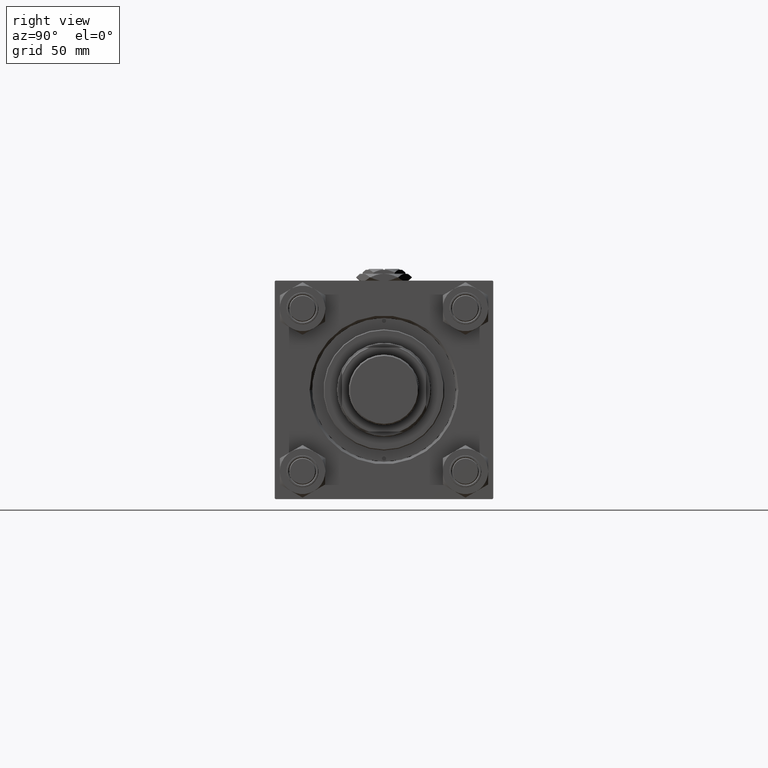
[diagram: clean part render]
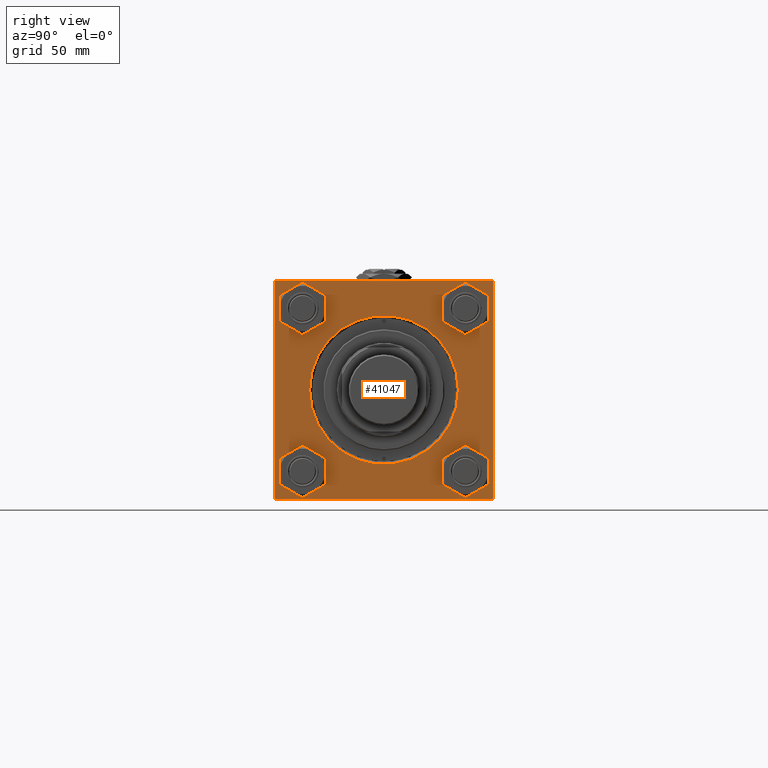
[diagram: same view with one face highlighted and labeled with its STEP entity id]
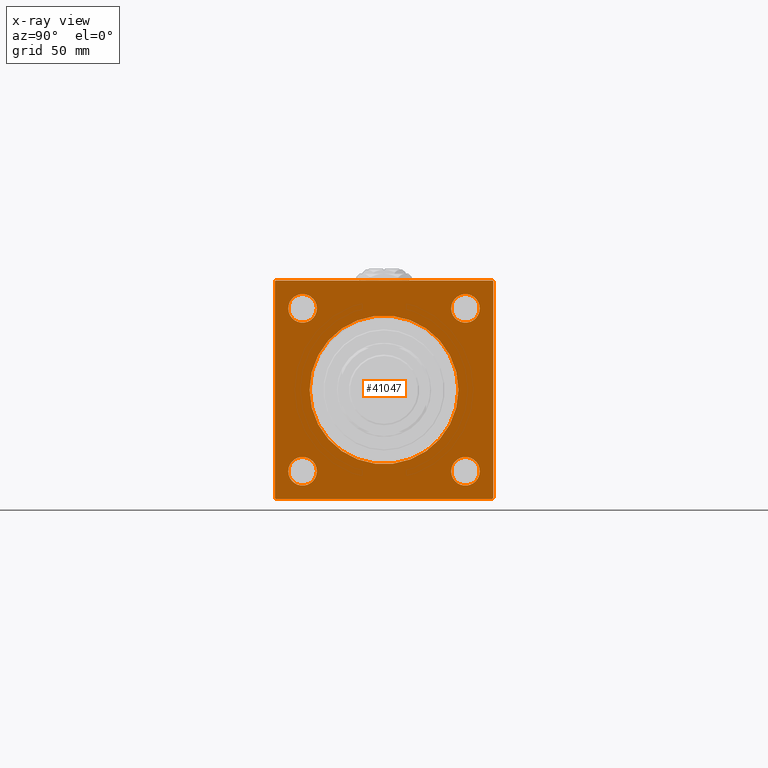
[diagram: x-ray of the same camera — body ghosted, the highlighted face saturated]
A machine part, right view. The second image highlights one B-rep face of the part: STEP entity #41047.
The next image is the same camera in x-ray: the body ghosted, the highlighted face saturated — about 0% of this face is hidden behind the body in this view.
In plain terms, the highlighted planar face has unit normal (-1, 0, 0).
Its self-contained STEP definition (entity closure, byte-faithful):
#288 = VECTOR ( 'NONE', #6985, 1000.000000000000000 ) ;
#870 = PLANE ( 'NONE',  #50421 ) ;
#971 = VECTOR ( 'NONE', #39085, 1000.000000000000000 ) ;
#1698 = DIRECTION ( 'NONE',  ( -1.000000000000000000, 0.000000000000000000, -0.000000000000000000 ) ) ;
#1717 = CARTESIAN_POINT ( 'NONE',  ( 188.0000000000000000, 48.45000000000000995, -48.45000000000001705 ) ) ;
#2848 = VERTEX_POINT ( 'NONE', #36010 ) ;
#3179 = VERTEX_POINT ( 'NONE', #35949 ) ;
#3214 = DIRECTION ( 'NONE',  ( 0.000000000000000000, 0.7071067811865279218, -0.7071067811865672237 ) ) ;
#3444 = VERTEX_POINT ( 'NONE', #28011 ) ;
#3786 = VERTEX_POINT ( 'NONE', #45689 ) ;
#4048 = DIRECTION ( 'NONE',  ( -0.000000000000000000, 0.7071067811865671127, 0.7071067811865279218 ) ) ;
#4156 = VERTEX_POINT ( 'NONE', #45083 ) ;
#4187 = CARTESIAN_POINT ( 'NONE',  ( 188.0000000000000000, 48.45000000000000995, 48.45000000000001705 ) ) ;
#4533 = VECTOR ( 'NONE', #3214, 1000.000000000000000 ) ;
#4697 = CIRCLE ( 'NONE', #38223, 8.499999999999923617 ) ;
#4843 = CARTESIAN_POINT ( 'NONE',  ( 188.0000000000000000, 65.00000000000002842, -64.50000000000001421 ) ) ;
#4860 = DIRECTION ( 'NONE',  ( 0.000000000000000000, 0.000000000000000000, 1.000000000000000000 ) ) ;
#6004 = CIRCLE ( 'NONE', #7742, 44.24999999999998579 ) ;
#6007 = EDGE_LOOP ( 'NONE', ( #17834, #17140, #47166, #43096, #7601, #17302, #52179, #29625 ) ) ;
#6625 = ORIENTED_EDGE ( 'NONE', *, *, #11578, .T. ) ;
#6974 = CARTESIAN_POINT ( 'NONE',  ( 188.0000000000000000, -48.45000000000001705, -48.45000000000001705 ) ) ;
#6985 = DIRECTION ( 'NONE',  ( 0.000000000000000000, 0.000000000000000000, -1.000000000000000000 ) ) ;
#7048 = CARTESIAN_POINT ( 'NONE',  ( 188.0000000000000000, -48.44999999999998153, 48.44999999999998863 ) ) ;
#7191 = LINE ( 'NONE', #23334, #46249 ) ;
#7240 = DIRECTION ( 'NONE',  ( -1.000000000000000000, 0.000000000000000000, -0.000000000000000000 ) ) ;
#7601 = ORIENTED_EDGE ( 'NONE', *, *, #13298, .F. ) ;
#7742 = AXIS2_PLACEMENT_3D ( 'NONE', #45964, #9111, #41926 ) ;
#7859 = VERTEX_POINT ( 'NONE', #31000 ) ;
#7871 = EDGE_CURVE ( 'NONE', #7859, #33468, #32573, .T. ) ;
#8725 = CARTESIAN_POINT ( 'NONE',  ( 188.0000000000000000, -64.50000000000002842, -65.00000000000001421 ) ) ;
#9111 = DIRECTION ( 'NONE',  ( -1.000000000000000000, 0.000000000000000000, -0.000000000000000000 ) ) ;
#9768 = EDGE_CURVE ( 'NONE', #34867, #36783, #6004, .T. ) ;
#10334 = VERTEX_POINT ( 'NONE', #8725 ) ;
#10449 = EDGE_CURVE ( 'NONE', #40619, #11512, #31820, .T. ) ;
#11501 = CIRCLE ( 'NONE', #42460, 8.499999999999923617 ) ;
#11512 = VERTEX_POINT ( 'NONE', #26478 ) ;
#11547 = ORIENTED_EDGE ( 'NONE', *, *, #34346, .T. ) ;
#11578 = EDGE_CURVE ( 'NONE', #2848, #27342, #48215, .T. ) ;
#12344 = VECTOR ( 'NONE', #4048, 1000.000000000000000 ) ;
#13298 = EDGE_CURVE ( 'NONE', #25006, #3786, #39881, .T. ) ;
#13474 = DIRECTION ( 'NONE',  ( -1.000000000000000000, 0.000000000000000000, -0.000000000000000000 ) ) ;
#14151 = LINE ( 'NONE', #25713, #25899 ) ;
#14317 = DIRECTION ( 'NONE',  ( -1.000000000000000000, 0.000000000000000000, -0.000000000000000000 ) ) ;
#14498 = CARTESIAN_POINT ( 'NONE',  ( 188.0000000000000000, 48.45000000000000995, -39.95000000000008811 ) ) ;
#14693 = CARTESIAN_POINT ( 'NONE',  ( 188.0000000000000000, -48.45000000000001705, -56.94999999999993889 ) ) ;
#15328 = LINE ( 'NONE', #34706, #288 ) ;
#16156 = EDGE_CURVE ( 'NONE', #3444, #52377, #14151, .T. ) ;
#17140 = ORIENTED_EDGE ( 'NONE', *, *, #20251, .T. ) ;
#17302 = ORIENTED_EDGE ( 'NONE', *, *, #44865, .T. ) ;
#17822 = VECTOR ( 'NONE', #40728, 1000.000000000000000 ) ;
#17834 = ORIENTED_EDGE ( 'NONE', *, *, #20256, .T. ) ;
#18124 = DIRECTION ( 'NONE',  ( -1.000000000000000000, 0.000000000000000000, -0.000000000000000000 ) ) ;
#18361 = CARTESIAN_POINT ( 'NONE',  ( 188.0000000000000000, 65.00000000000002842, 65.00000000000001421 ) ) ;
#18821 = EDGE_LOOP ( 'NONE', ( #53119, #45161 ) ) ;
#19096 = VECTOR ( 'NONE', #27521, 1000.000000000000000 ) ;
#19139 = EDGE_LOOP ( 'NONE', ( #37675, #27423 ) ) ;
#19782 = EDGE_LOOP ( 'NONE', ( #23078, #50325 ) ) ;
#19972 = DIRECTION ( 'NONE',  ( 0.000000000000000000, 0.000000000000000000, 1.000000000000000000 ) ) ;
#20089 = CIRCLE ( 'NONE', #39850, 8.499999999999923617 ) ;
#20182 = EDGE_CURVE ( 'NONE', #36783, #34867, #37215, .T. ) ;
#20251 = EDGE_CURVE ( 'NONE', #23079, #10334, #43315, .T. ) ;
#20256 = EDGE_CURVE ( 'NONE', #52377, #23079, #15328, .T. ) ;
#21312 = FACE_BOUND ( 'NONE', #19782, .T. ) ;
#22316 = AXIS2_PLACEMENT_3D ( 'NONE', #48498, #48751, #19972 ) ;
#22691 = DIRECTION ( 'NONE',  ( 0.000000000000000000, 0.000000000000000000, 1.000000000000000000 ) ) ;
#23078 = ORIENTED_EDGE ( 'NONE', *, *, #9768, .T. ) ;
#23079 = VERTEX_POINT ( 'NONE', #27607 ) ;
#23334 = CARTESIAN_POINT ( 'NONE',  ( 188.0000000000000000, 65.00000000000002842, -64.99999999999998579 ) ) ;
#23455 = CARTESIAN_POINT ( 'NONE',  ( 188.0000000000000000, -48.44999999999998153, 48.44999999999998863 ) ) ;
#24096 = DIRECTION ( 'NONE',  ( -1.000000000000000000, 0.000000000000000000, -0.000000000000000000 ) ) ;
#25006 = VERTEX_POINT ( 'NONE', #48715 ) ;
#25684 = DIRECTION ( 'NONE',  ( 0.000000000000000000, 0.000000000000000000, 1.000000000000000000 ) ) ;
#25713 = CARTESIAN_POINT ( 'NONE',  ( 188.0000000000000000, -64.99999999999998579, 64.50000000000008527 ) ) ;
#25889 = FACE_BOUND ( 'NONE', #19139, .T. ) ;
#25899 = VECTOR ( 'NONE', #50450, 999.9999999999998863 ) ;
#26115 = CARTESIAN_POINT ( 'NONE',  ( 188.0000000000000000, 0.000000000000000000, 0.000000000000000000 ) ) ;
#26189 = DIRECTION ( 'NONE',  ( 0.000000000000000000, 0.000000000000000000, 1.000000000000000000 ) ) ;
#26478 = CARTESIAN_POINT ( 'NONE',  ( 188.0000000000000000, 48.45000000000000995, 56.94999999999993889 ) ) ;
#26683 = DIRECTION ( 'NONE',  ( -0.000000000000000000, 0.000000000000000000, 1.000000000000000000 ) ) ;
#26788 = EDGE_LOOP ( 'NONE', ( #35453, #11547 ) ) ;
#26974 = ORIENTED_EDGE ( 'NONE', *, *, #51354, .T. ) ;
#27342 = VERTEX_POINT ( 'NONE', #14498 ) ;
#27423 = ORIENTED_EDGE ( 'NONE', *, *, #35806, .T. ) ;
#27521 = DIRECTION ( 'NONE',  ( 0.000000000000000000, -1.000000000000000000, -1.067522139062650425E-16 ) ) ;
#27607 = CARTESIAN_POINT ( 'NONE',  ( 188.0000000000000000, -64.99999999999998579, -64.50000000000002842 ) ) ;
#27741 = AXIS2_PLACEMENT_3D ( 'NONE', #26115, #13474, #4860 ) ;
#27793 = CARTESIAN_POINT ( 'NONE',  ( 188.0000000000000000, 64.50000000000002842, -64.99999999999998579 ) ) ;
#28011 = CARTESIAN_POINT ( 'NONE',  ( 188.0000000000000000, -64.50000000000008527, 65.00000000000000000 ) ) ;
#28399 = AXIS2_PLACEMENT_3D ( 'NONE', #30495, #1698, #26189 ) ;
#28909 = EDGE_CURVE ( 'NONE', #3179, #46687, #30749, .T. ) ;
#28944 = DIRECTION ( 'NONE',  ( 0.000000000000000000, 0.000000000000000000, 1.000000000000000000 ) ) ;
#29411 = EDGE_CURVE ( 'NONE', #51295, #3786, #41704, .T. ) ;
#29625 = ORIENTED_EDGE ( 'NONE', *, *, #16156, .T. ) ;
#30495 = CARTESIAN_POINT ( 'NONE',  ( 188.0000000000000000, 48.45000000000000995, 48.45000000000001705 ) ) ;
#30593 = EDGE_CURVE ( 'NONE', #4156, #3444, #39364, .T. ) ;
#30749 = CIRCLE ( 'NONE', #35041, 8.499999999999923617 ) ;
#31000 = CARTESIAN_POINT ( 'NONE',  ( 188.0000000000000000, -48.44999999999998153, 39.95000000000005969 ) ) ;
#31003 = DIRECTION ( 'NONE',  ( -1.000000000000000000, 0.000000000000000000, -0.000000000000000000 ) ) ;
#31820 = CIRCLE ( 'NONE', #28399, 8.499999999999923617 ) ;
#32524 = CARTESIAN_POINT ( 'NONE',  ( 188.0000000000000000, -64.99999999999998579, 64.50000000000008527 ) ) ;
#32573 = CIRCLE ( 'NONE', #48029, 8.499999999999923617 ) ;
#33425 = FACE_BOUND ( 'NONE', #18821, .T. ) ;
#33444 = EDGE_CURVE ( 'NONE', #46687, #3179, #20089, .T. ) ;
#33468 = VERTEX_POINT ( 'NONE', #39796 ) ;
#34346 = EDGE_CURVE ( 'NONE', #33468, #7859, #11501, .T. ) ;
#34706 = CARTESIAN_POINT ( 'NONE',  ( 188.0000000000000000, -64.99999999999998579, 65.00000000000000000 ) ) ;
#34867 = VERTEX_POINT ( 'NONE', #48015 ) ;
#35041 = AXIS2_PLACEMENT_3D ( 'NONE', #49631, #42099, #25684 ) ;
#35453 = ORIENTED_EDGE ( 'NONE', *, *, #7871, .T. ) ;
#35750 = DIRECTION ( 'NONE',  ( 0.000000000000000000, 0.000000000000000000, 1.000000000000000000 ) ) ;
#35806 = EDGE_CURVE ( 'NONE', #11512, #40619, #4697, .T. ) ;
#35900 = CARTESIAN_POINT ( 'NONE',  ( 188.0000000000000000, 64.50000000000005684, 65.00000000000001421 ) ) ;
#35949 = CARTESIAN_POINT ( 'NONE',  ( 188.0000000000000000, -48.45000000000001705, -39.95000000000008811 ) ) ;
#36010 = CARTESIAN_POINT ( 'NONE',  ( 188.0000000000000000, 48.45000000000000995, -56.94999999999993889 ) ) ;
#36157 = LINE ( 'NONE', #35900, #17822 ) ;
#36231 = DIRECTION ( 'NONE',  ( 0.000000000000000000, -1.000000000000000000, -2.135044278125300850E-16 ) ) ;
#36783 = VERTEX_POINT ( 'NONE', #52101 ) ;
#37215 = CIRCLE ( 'NONE', #27741, 44.24999999999998579 ) ;
#37675 = ORIENTED_EDGE ( 'NONE', *, *, #10449, .T. ) ;
#37724 = FACE_OUTER_BOUND ( 'NONE', #6007, .T. ) ;
#38223 = AXIS2_PLACEMENT_3D ( 'NONE', #4187, #24096, #28944 ) ;
#38729 = CARTESIAN_POINT ( 'NONE',  ( 188.0000000000000000, 48.45000000000000995, 39.95000000000008811 ) ) ;
#39085 = DIRECTION ( 'NONE',  ( 0.000000000000000000, 0.000000000000000000, -1.000000000000000000 ) ) ;
#39364 = LINE ( 'NONE', #44203, #19096 ) ;
#39606 = DIRECTION ( 'NONE',  ( 0.000000000000000000, 0.000000000000000000, 1.000000000000000000 ) ) ;
#39796 = CARTESIAN_POINT ( 'NONE',  ( 188.0000000000000000, -48.44999999999998153, 56.94999999999991047 ) ) ;
#39850 = AXIS2_PLACEMENT_3D ( 'NONE', #6974, #7240, #35750 ) ;
#39881 = LINE ( 'NONE', #18361, #971 ) ;
#40619 = VERTEX_POINT ( 'NONE', #38729 ) ;
#40728 = DIRECTION ( 'NONE',  ( 0.000000000000000000, -0.7071067811865279218, 0.7071067811865671127 ) ) ;
#41047 = ADVANCED_FACE ( 'NONE', ( #33425, #49820, #25889, #41763, #21312, #37724 ), #870, .F. ) ;
#41704 = LINE ( 'NONE', #4843, #12344 ) ;
#41763 = FACE_BOUND ( 'NONE', #26788, .T. ) ;
#41926 = DIRECTION ( 'NONE',  ( 0.000000000000000000, 0.000000000000000000, 1.000000000000000000 ) ) ;
#42099 = DIRECTION ( 'NONE',  ( -1.000000000000000000, 0.000000000000000000, -0.000000000000000000 ) ) ;
#42460 = AXIS2_PLACEMENT_3D ( 'NONE', #23455, #31003, #39606 ) ;
#43096 = ORIENTED_EDGE ( 'NONE', *, *, #29411, .T. ) ;
#43315 = LINE ( 'NONE', #51366, #4533 ) ;
#44203 = CARTESIAN_POINT ( 'NONE',  ( 188.0000000000000000, 65.00000000000002842, 65.00000000000001421 ) ) ;
#44865 = EDGE_CURVE ( 'NONE', #25006, #4156, #36157, .T. ) ;
#45083 = CARTESIAN_POINT ( 'NONE',  ( 188.0000000000000000, 64.50000000000005684, 65.00000000000001421 ) ) ;
#45161 = ORIENTED_EDGE ( 'NONE', *, *, #28909, .T. ) ;
#45511 = CIRCLE ( 'NONE', #22316, 8.499999999999923617 ) ;
#45612 = AXIS2_PLACEMENT_3D ( 'NONE', #1717, #18124, #22691 ) ;
#45689 = CARTESIAN_POINT ( 'NONE',  ( 188.0000000000000000, 65.00000000000002842, -64.50000000000001421 ) ) ;
#45964 = CARTESIAN_POINT ( 'NONE',  ( 188.0000000000000000, 0.000000000000000000, 0.000000000000000000 ) ) ;
#46249 = VECTOR ( 'NONE', #36231, 1000.000000000000000 ) ;
#46588 = EDGE_LOOP ( 'NONE', ( #6625, #26974 ) ) ;
#46687 = VERTEX_POINT ( 'NONE', #14693 ) ;
#47166 = ORIENTED_EDGE ( 'NONE', *, *, #47465, .F. ) ;
#47403 = DIRECTION ( 'NONE',  ( -1.000000000000000000, 0.000000000000000000, -0.000000000000000000 ) ) ;
#47465 = EDGE_CURVE ( 'NONE', #51295, #10334, #7191, .T. ) ;
#48015 = CARTESIAN_POINT ( 'NONE',  ( 188.0000000000000000, 0.000000000000000000, -44.24999999999998579 ) ) ;
#48029 = AXIS2_PLACEMENT_3D ( 'NONE', #7048, #47403, #48462 ) ;
#48215 = CIRCLE ( 'NONE', #45612, 8.499999999999923617 ) ;
#48462 = DIRECTION ( 'NONE',  ( 0.000000000000000000, 0.000000000000000000, 1.000000000000000000 ) ) ;
#48498 = CARTESIAN_POINT ( 'NONE',  ( 188.0000000000000000, 48.45000000000000995, -48.45000000000001705 ) ) ;
#48715 = CARTESIAN_POINT ( 'NONE',  ( 188.0000000000000000, 65.00000000000002842, 64.50000000000001421 ) ) ;
#48751 = DIRECTION ( 'NONE',  ( -1.000000000000000000, 0.000000000000000000, -0.000000000000000000 ) ) ;
#49631 = CARTESIAN_POINT ( 'NONE',  ( 188.0000000000000000, -48.45000000000001705, -48.45000000000001705 ) ) ;
#49820 = FACE_BOUND ( 'NONE', #46588, .T. ) ;
#50087 = CARTESIAN_POINT ( 'NONE',  ( 188.0000000000000000, 0.000000000000000000, 0.000000000000000000 ) ) ;
#50325 = ORIENTED_EDGE ( 'NONE', *, *, #20182, .T. ) ;
#50421 = AXIS2_PLACEMENT_3D ( 'NONE', #50087, #14317, #26683 ) ;
#50450 = DIRECTION ( 'NONE',  ( -0.000000000000000000, -0.7071067811865376918, -0.7071067811865574537 ) ) ;
#51295 = VERTEX_POINT ( 'NONE', #27793 ) ;
#51354 = EDGE_CURVE ( 'NONE', #27342, #2848, #45511, .T. ) ;
#51366 = CARTESIAN_POINT ( 'NONE',  ( 188.0000000000000000, -64.50000000000002842, -65.00000000000001421 ) ) ;
#52101 = CARTESIAN_POINT ( 'NONE',  ( 188.0000000000000000, 5.419062086227035828E-15, 44.24999999999998579 ) ) ;
#52179 = ORIENTED_EDGE ( 'NONE', *, *, #30593, .T. ) ;
#52377 = VERTEX_POINT ( 'NONE', #32524 ) ;
#53119 = ORIENTED_EDGE ( 'NONE', *, *, #33444, .T. ) ;